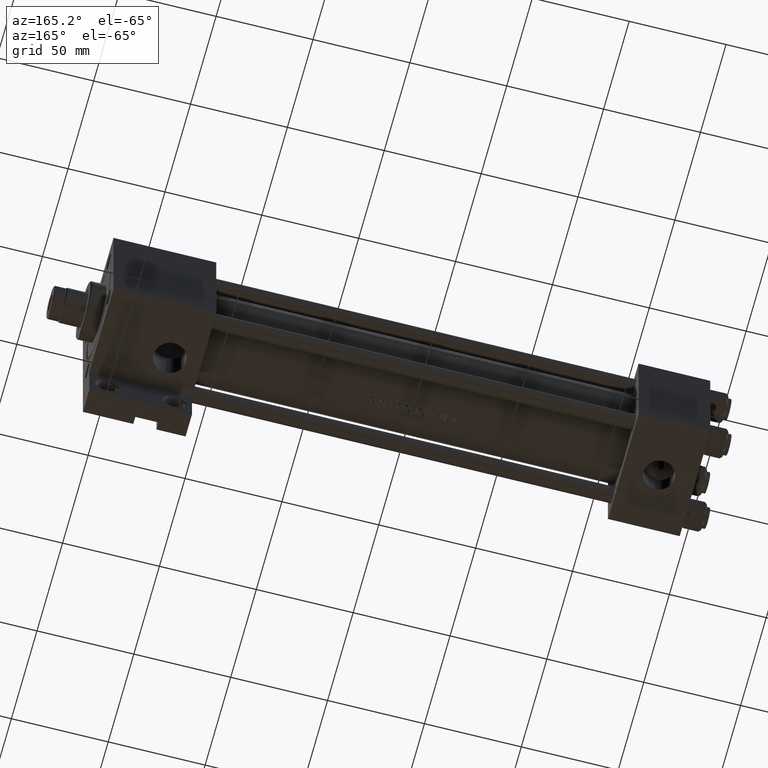
[diagram: clean part render]
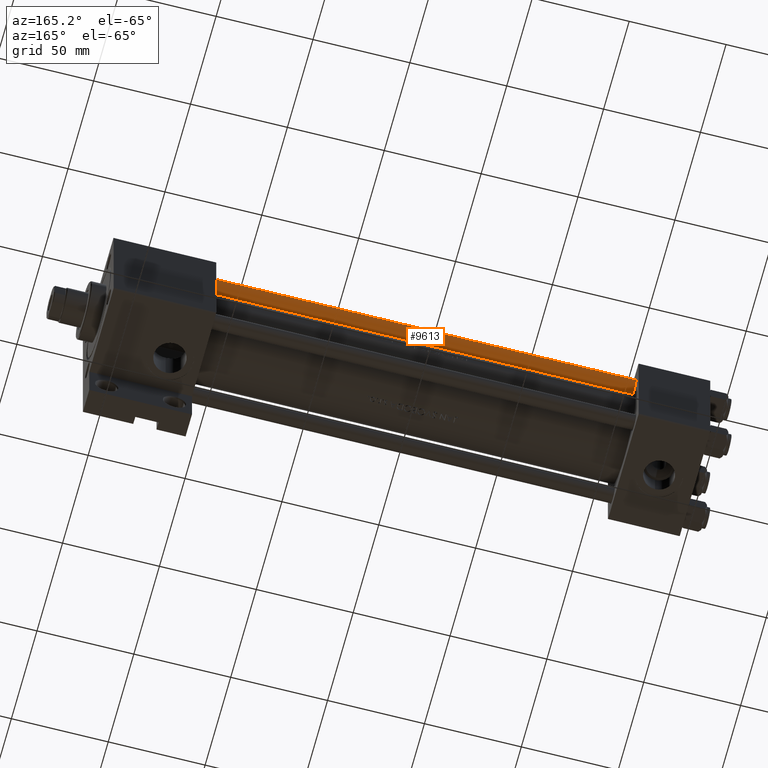
[diagram: same view with one face highlighted and labeled with its STEP entity id]
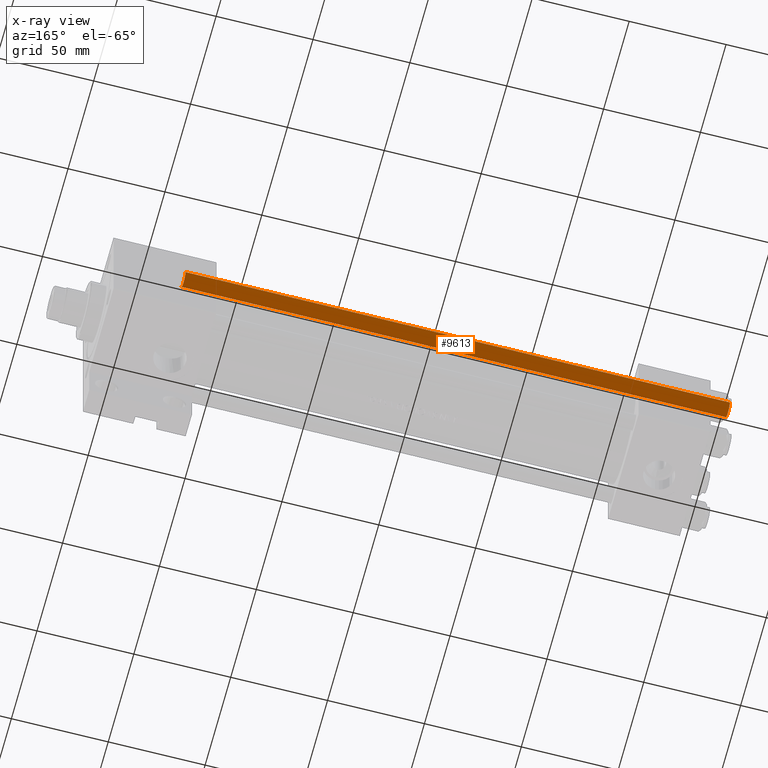
[diagram: x-ray of the same camera — body ghosted, the highlighted face saturated]
A machine part, auxiliary view. The second image highlights one B-rep face of the part: STEP entity #9613.
The next image is the same camera in x-ray: the body ghosted, the highlighted face saturated — about 0% of this face is hidden behind the body in this view.
In plain terms, the highlighted cylindrical surface (edge-blend (fillet) strip) has radius 4 mm, axis along (1, -0, 0).
Its self-contained STEP definition (entity closure, byte-faithful):
#610 = VERTEX_POINT ( 'NONE', #12010 ) ;
#3437 = AXIS2_PLACEMENT_3D ( 'NONE', #23946, #13104, #38997 ) ;
#4266 = DIRECTION ( 'NONE',  ( -0.000000000000000000, -0.000000000000000000, -1.000000000000000000 ) ) ;
#5677 = VERTEX_POINT ( 'NONE', #8873 ) ;
#7618 = DIRECTION ( 'NONE',  ( 1.000000000000000000, 0.000000000000000000, 0.000000000000000000 ) ) ;
#8873 = CARTESIAN_POINT ( 'NONE',  ( -4.000000000000000000, 0.000000000000000000, 0.5000000000000559552 ) ) ;
#9613 = ADVANCED_FACE ( 'NONE', ( #21458 ), #43176, .T. ) ;
#10062 = VECTOR ( 'NONE', #4266, 1000.000000000000000 ) ;
#10363 = ORIENTED_EDGE ( 'NONE', *, *, #18831, .T. ) ;
#11565 = DIRECTION ( 'NONE',  ( 0.000000000000000000, 0.000000000000000000, -1.000000000000000000 ) ) ;
#12010 = CARTESIAN_POINT ( 'NONE',  ( -4.000000000000000000, 0.000000000000000000, 281.5000000000000000 ) ) ;
#13104 = DIRECTION ( 'NONE',  ( -0.000000000000000000, -0.000000000000000000, 1.000000000000000000 ) ) ;
#13960 = DIRECTION ( 'NONE',  ( -0.000000000000000000, -0.000000000000000000, -1.000000000000000000 ) ) ;
#17037 = DIRECTION ( 'NONE',  ( -1.000000000000000000, 0.000000000000000000, 0.000000000000000000 ) ) ;
#18003 = DIRECTION ( 'NONE',  ( -0.000000000000000000, -0.000000000000000000, -1.000000000000000000 ) ) ;
#18311 = CIRCLE ( 'NONE', #45883, 4.000000000000000000 ) ;
#18831 = EDGE_CURVE ( 'NONE', #27875, #5677, #38096, .T. ) ;
#19128 = ORIENTED_EDGE ( 'NONE', *, *, #30087, .F. ) ;
#20627 = AXIS2_PLACEMENT_3D ( 'NONE', #28639, #18003, #17037 ) ;
#21458 = FACE_OUTER_BOUND ( 'NONE', #36425, .T. ) ;
#23946 = CARTESIAN_POINT ( 'NONE',  ( 0.000000000000000000, 0.000000000000000000, 0.5000000000000559552 ) ) ;
#25011 = VECTOR ( 'NONE', #13960, 1000.000000000000000 ) ;
#27418 = CARTESIAN_POINT ( 'NONE',  ( 4.000000000000000000, 4.898587196589412829E-16, 282.0000000000000000 ) ) ;
#27875 = VERTEX_POINT ( 'NONE', #42231 ) ;
#28639 = CARTESIAN_POINT ( 'NONE',  ( 0.000000000000000000, 0.000000000000000000, 282.0000000000000000 ) ) ;
#29255 = LINE ( 'NONE', #47743, #25011 ) ;
#30087 = EDGE_CURVE ( 'NONE', #610, #5677, #29255, .T. ) ;
#30479 = EDGE_CURVE ( 'NONE', #40369, #27875, #45430, .T. ) ;
#31568 = ORIENTED_EDGE ( 'NONE', *, *, #46018, .T. ) ;
#36121 = CARTESIAN_POINT ( 'NONE',  ( 4.000000000000000000, 4.898587196589412829E-16, 281.5000000000000000 ) ) ;
#36425 = EDGE_LOOP ( 'NONE', ( #31568, #45566, #10363, #19128 ) ) ;
#38096 = CIRCLE ( 'NONE', #3437, 4.000000000000000000 ) ;
#38997 = DIRECTION ( 'NONE',  ( 1.000000000000000000, 0.000000000000000000, 0.000000000000000000 ) ) ;
#40369 = VERTEX_POINT ( 'NONE', #36121 ) ;
#42231 = CARTESIAN_POINT ( 'NONE',  ( 4.000000000000000000, 4.898587196589412829E-16, 0.5000000000000559552 ) ) ;
#43176 = CYLINDRICAL_SURFACE ( 'NONE', #20627, 4.000000000000000000 ) ;
#45430 = LINE ( 'NONE', #27418, #10062 ) ;
#45566 = ORIENTED_EDGE ( 'NONE', *, *, #30479, .T. ) ;
#45883 = AXIS2_PLACEMENT_3D ( 'NONE', #48546, #11565, #7618 ) ;
#46018 = EDGE_CURVE ( 'NONE', #610, #40369, #18311, .T. ) ;
#47743 = CARTESIAN_POINT ( 'NONE',  ( -4.000000000000000000, 0.000000000000000000, 282.0000000000000000 ) ) ;
#48546 = CARTESIAN_POINT ( 'NONE',  ( 0.000000000000000000, 0.000000000000000000, 281.5000000000000000 ) ) ;